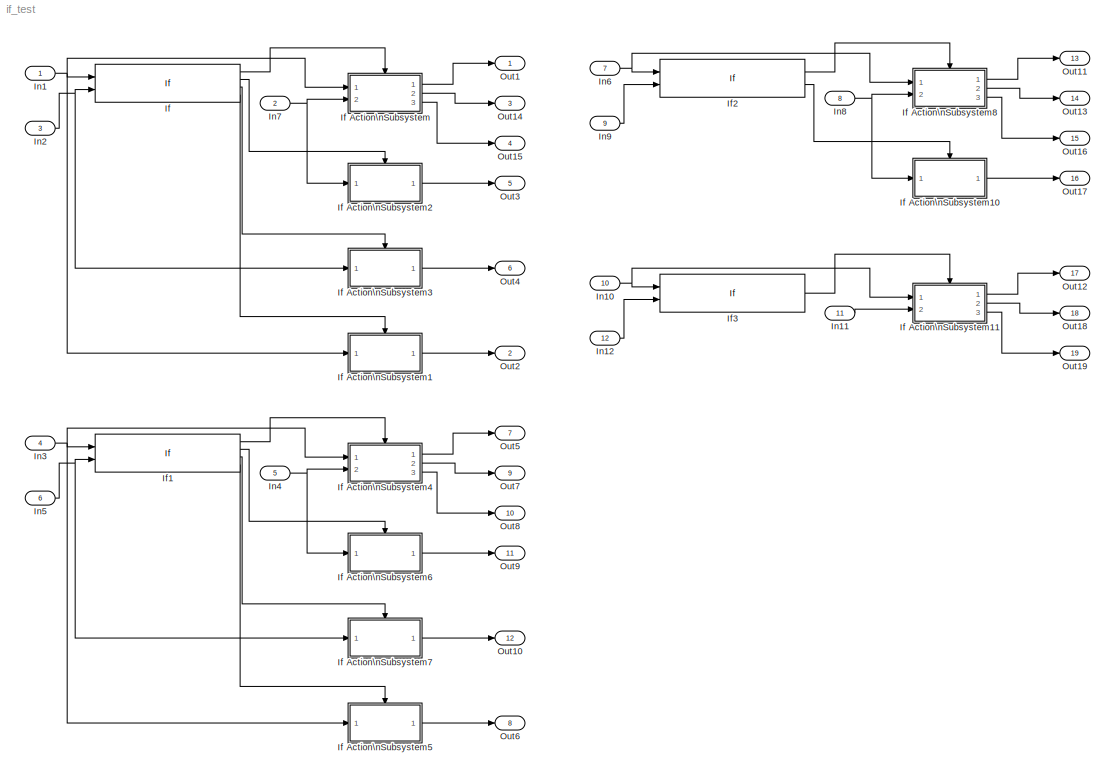
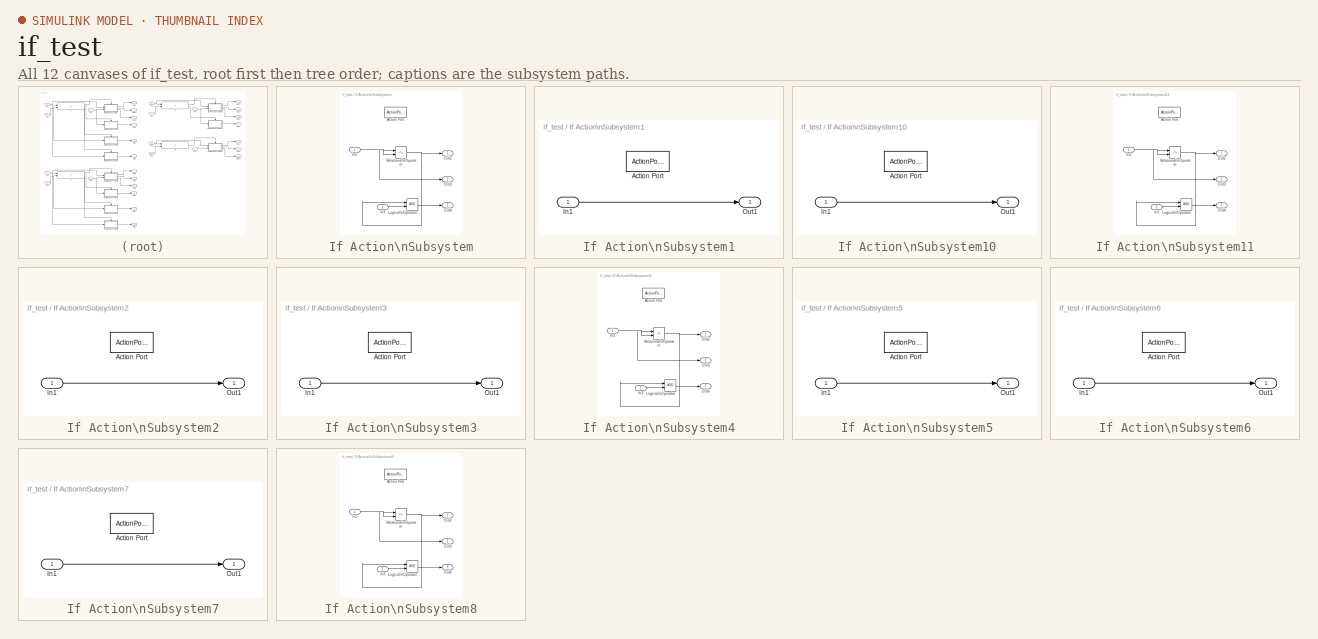
[diagram: thumbnail index - all 12 canvases of the model, root first then tree order]
MODEL if_test
KIND model
BLOCK [If] If
  ElseIfExpressions = u2 < 3, (-u2 > u1) & u2 > 0
  IfExpression = u2 ~= 0
  NumInputs = 2
  Ports = [2, 4]
  SID = 156
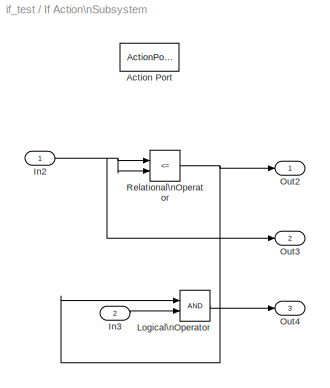
BLOCK [SubSystem] If Action\nSubsystem
  Ports = [2, 3, 0, 0, 0, 0, 0, 1]
  RequestExecContextInheritance = off
  SID = 152
  TreatAsAtomicUnit = on
  Variant = off
BLOCK [ActionPort] If Action\nSubsystem/Action Port
  ActionType = then
  SID = 154
BLOCK [Inport] If Action\nSubsystem/In2
  IconDisplay = Port number
  SID = 157
BLOCK [Inport] If Action\nSubsystem/In3
  IconDisplay = Port number
  Port = 2
  SID = 158
BLOCK [Logic] If Action\nSubsystem/Logical\nOperator
  AllPortsSameDT = off
  OutDataTypeStr = boolean
  Ports = [2, 1]
  SID = 159
BLOCK [Outport] If Action\nSubsystem/Out2
  IconDisplay = Port number
  SID = 161
BLOCK [Outport] If Action\nSubsystem/Out3
  IconDisplay = Port number
  Port = 2
  SID = 162
BLOCK [Outport] If Action\nSubsystem/Out4
  IconDisplay = Port number
  Port = 3
  SID = 163
BLOCK [RelationalOperator] If Action\nSubsystem/Relational\nOperator
  InputSameDT = off
  Operator = <=
  OutDataTypeStr = boolean
  Ports = [2, 1]
  SID = 160
BLOCK [SubSystem] If Action\nSubsystem1
  Ports = [1, 1, 0, 0, 0, 0, 0, 1]
  RequestExecContextInheritance = off
  SID = 164
  TreatAsAtomicUnit = on
  Variant = off
BLOCK [ActionPort] If Action\nSubsystem1/Action Port
  ActionType = else
  SID = 166
BLOCK [Inport] If Action\nSubsystem1/In1
  IconDisplay = Port number
  SID = 165
BLOCK [Outport] If Action\nSubsystem1/Out1
  IconDisplay = Port number
  SID = 167
BLOCK [SubSystem] If Action\nSubsystem10
  Ports = [1, 1, 0, 0, 0, 0, 0, 1]
  RequestExecContextInheritance = off
  SID = 227
  TreatAsAtomicUnit = on
  Variant = off
BLOCK [ActionPort] If Action\nSubsystem10/Action Port
  ActionType = elseif
  SID = 229
BLOCK [Inport] If Action\nSubsystem10/In1
  IconDisplay = Port number
  SID = 228
BLOCK [Outport] If Action\nSubsystem10/Out1
  IconDisplay = Port number
  SID = 230
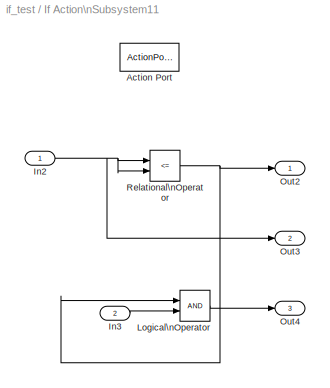
BLOCK [SubSystem] If Action\nSubsystem11
  Ports = [2, 3, 0, 0, 0, 0, 0, 1]
  RequestExecContextInheritance = off
  SID = 248
  TreatAsAtomicUnit = on
  Variant = off
BLOCK [ActionPort] If Action\nSubsystem11/Action Port
  ActionType = then
  SID = 251
BLOCK [Inport] If Action\nSubsystem11/In2
  IconDisplay = Port number
  SID = 249
BLOCK [Inport] If Action\nSubsystem11/In3
  IconDisplay = Port number
  Port = 2
  SID = 250
BLOCK [Logic] If Action\nSubsystem11/Logical\nOperator
  AllPortsSameDT = off
  OutDataTypeStr = boolean
  Ports = [2, 1]
  SID = 252
BLOCK [Outport] If Action\nSubsystem11/Out2
  IconDisplay = Port number
  SID = 254
BLOCK [Outport] If Action\nSubsystem11/Out3
  IconDisplay = Port number
  Port = 2
  SID = 255
BLOCK [Outport] If Action\nSubsystem11/Out4
  IconDisplay = Port number
  Port = 3
  SID = 256
BLOCK [RelationalOperator] If Action\nSubsystem11/Relational\nOperator
  InputSameDT = off
  Operator = <=
  OutDataTypeStr = boolean
  Ports = [2, 1]
  SID = 253
BLOCK [SubSystem] If Action\nSubsystem2
  Ports = [1, 1, 0, 0, 0, 0, 0, 1]
  RequestExecContextInheritance = off
  SID = 168
  TreatAsAtomicUnit = on
  Variant = off
BLOCK [ActionPort] If Action\nSubsystem2/Action Port
  ActionType = elseif
  SID = 170
BLOCK [Inport] If Action\nSubsystem2/In1
  IconDisplay = Port number
  SID = 169
BLOCK [Outport] If Action\nSubsystem2/Out1
  IconDisplay = Port number
  SID = 171
BLOCK [SubSystem] If Action\nSubsystem3
  Ports = [1, 1, 0, 0, 0, 0, 0, 1]
  RequestExecContextInheritance = off
  SID = 173
  TreatAsAtomicUnit = on
  Variant = off
BLOCK [ActionPort] If Action\nSubsystem3/Action Port
  ActionType = elseif
  SID = 175
BLOCK [Inport] If Action\nSubsystem3/In1
  IconDisplay = Port number
  SID = 174
BLOCK [Outport] If Action\nSubsystem3/Out1
  IconDisplay = Port number
  SID = 176
BLOCK [SubSystem] If Action\nSubsystem4
  Ports = [2, 3, 0, 0, 0, 0, 0, 1]
  RequestExecContextInheritance = off
  SID = 183
  TreatAsAtomicUnit = on
  Variant = off
BLOCK [ActionPort] If Action\nSubsystem4/Action Port
  ActionType = then
  SID = 186
BLOCK [Inport] If Action\nSubsystem4/In2
  IconDisplay = Port number
  SID = 184
BLOCK [Inport] If Action\nSubsystem4/In3
  IconDisplay = Port number
  Port = 2
  SID = 185
BLOCK [Logic] If Action\nSubsystem4/Logical\nOperator
  AllPortsSameDT = off
  OutDataTypeStr = boolean
  Ports = [2, 1]
  SID = 187
BLOCK [Outport] If Action\nSubsystem4/Out2
  IconDisplay = Port number
  SID = 189
BLOCK [Outport] If Action\nSubsystem4/Out3
  IconDisplay = Port number
  Port = 2
  SID = 190
BLOCK [Outport] If Action\nSubsystem4/Out4
  IconDisplay = Port number
  Port = 3
  SID = 191
BLOCK [RelationalOperator] If Action\nSubsystem4/Relational\nOperator
  InputSameDT = off
  Operator = <=
  OutDataTypeStr = boolean
  Ports = [2, 1]
  SID = 188
BLOCK [SubSystem] If Action\nSubsystem5
  Ports = [1, 1, 0, 0, 0, 0, 0, 1]
  RequestExecContextInheritance = off
  SID = 192
  TreatAsAtomicUnit = on
  Variant = off
BLOCK [ActionPort] If Action\nSubsystem5/Action Port
  ActionType = else
  SID = 194
BLOCK [Inport] If Action\nSubsystem5/In1
  IconDisplay = Port number
  SID = 193
BLOCK [Outport] If Action\nSubsystem5/Out1
  IconDisplay = Port number
  SID = 195
BLOCK [SubSystem] If Action\nSubsystem6
  Ports = [1, 1, 0, 0, 0, 0, 0, 1]
  RequestExecContextInheritance = off
  SID = 196
  TreatAsAtomicUnit = on
  Variant = off
BLOCK [ActionPort] If Action\nSubsystem6/Action Port
  ActionType = elseif
  SID = 198
BLOCK [Inport] If Action\nSubsystem6/In1
  IconDisplay = Port number
  SID = 197
BLOCK [Outport] If Action\nSubsystem6/Out1
  IconDisplay = Port number
  SID = 199
BLOCK [SubSystem] If Action\nSubsystem7
  Ports = [1, 1, 0, 0, 0, 0, 0, 1]
  RequestExecContextInheritance = off
  SID = 200
  TreatAsAtomicUnit = on
  Variant = off
BLOCK [ActionPort] If Action\nSubsystem7/Action Port
  ActionType = elseif
  SID = 202
BLOCK [Inport] If Action\nSubsystem7/In1
  IconDisplay = Port number
  SID = 201
BLOCK [Outport] If Action\nSubsystem7/Out1
  IconDisplay = Port number
  SID = 203
BLOCK [SubSystem] If Action\nSubsystem8
  Ports = [2, 3, 0, 0, 0, 0, 0, 1]
  RequestExecContextInheritance = off
  SID = 214
  TreatAsAtomicUnit = on
  Variant = off
BLOCK [ActionPort] If Action\nSubsystem8/Action Port
  ActionType = then
  SID = 217
BLOCK [Inport] If Action\nSubsystem8/In2
  IconDisplay = Port number
  SID = 215
BLOCK [Inport] If Action\nSubsystem8/In3
  IconDisplay = Port number
  Port = 2
  SID = 216
BLOCK [Logic] If Action\nSubsystem8/Logical\nOperator
  AllPortsSameDT = off
  OutDataTypeStr = boolean
  Ports = [2, 1]
  SID = 218
BLOCK [Outport] If Action\nSubsystem8/Out2
  IconDisplay = Port number
  SID = 220
BLOCK [Outport] If Action\nSubsystem8/Out3
  IconDisplay = Port number
  Port = 2
  SID = 221
BLOCK [Outport] If Action\nSubsystem8/Out4
  IconDisplay = Port number
  Port = 3
  SID = 222
BLOCK [RelationalOperator] If Action\nSubsystem8/Relational\nOperator
  InputSameDT = off
  Operator = <=
  OutDataTypeStr = boolean
  Ports = [2, 1]
  SID = 219
BLOCK [If] If1
  ElseIfExpressions = u2(2) < 3, (-u2(1) > u1(3)) & u2(2) > 0
  IfExpression = u1(2) == 0
  NumInputs = 2
  Ports = [2, 4]
  SID = 182
BLOCK [If] If2
  ElseIfExpressions = (-u2 > u1) | u2 > 0
  IfExpression = u2 ~= 0
  NumInputs = 2
  Ports = [2, 2]
  SID = 213
  ShowElse = off
BLOCK [If] If3
  IfExpression = u2 ~= 0
  NumInputs = 2
  Ports = [2, 1]
  SID = 257
  ShowElse = off
BLOCK [Inport] In1
  IconDisplay = Port number
  SID = 30
BLOCK [Inport] In10
  IconDisplay = Port number
  Port = 10
  SID = 241
BLOCK [Inport] In11
  IconDisplay = Port number
  OutDataTypeStr = boolean
  Port = 11
  SID = 242
BLOCK [Inport] In12
  IconDisplay = Port number
  Port = 12
  SID = 243
BLOCK [Inport] In2
  IconDisplay = Port number
  Port = 3
  SID = 178
BLOCK [Inport] In3
  IconDisplay = Port number
  Port = 4
  PortDimensions = 3
  SID = 179
BLOCK [Inport] In4
  IconDisplay = Port number
  OutDataTypeStr = boolean
  Port = 5
  SID = 180
BLOCK [Inport] In5
  IconDisplay = Port number
  Port = 6
  PortDimensions = 4
  SID = 181
BLOCK [Inport] In6
  IconDisplay = Port number
  Port = 7
  SID = 210
BLOCK [Inport] In7
  IconDisplay = Port number
  OutDataTypeStr = boolean
  Port = 2
  SID = 149
BLOCK [Inport] In8
  IconDisplay = Port number
  OutDataTypeStr = boolean
  Port = 8
  SID = 211
BLOCK [Inport] In9
  IconDisplay = Port number
  Port = 9
  SID = 212
BLOCK [Outport] Out1
  IconDisplay = Port number
  SID = 32
BLOCK [Outport] Out10
  IconDisplay = Port number
  Port = 12
  SID = 209
BLOCK [Outport] Out11
  IconDisplay = Port number
  Port = 13
  SID = 235
BLOCK [Outport] Out12
  IconDisplay = Port number
  Port = 17
  SID = 258
BLOCK [Outport] Out13
  IconDisplay = Port number
  Port = 14
  SID = 237
BLOCK [Outport] Out14
  IconDisplay = Port number
  Port = 3
  SID = 144
BLOCK [Outport] Out15
  IconDisplay = Port number
  Port = 4
  SID = 150
BLOCK [Outport] Out16
  IconDisplay = Port number
  Port = 15
  SID = 238
BLOCK [Outport] Out17
  IconDisplay = Port number
  Port = 16
  SID = 239
BLOCK [Outport] Out18
  IconDisplay = Port number
  Port = 18
  SID = 259
BLOCK [Outport] Out19
  IconDisplay = Port number
  Port = 19
  SID = 260
BLOCK [Outport] Out2
  IconDisplay = Port number
  Port = 2
  SID = 59
BLOCK [Outport] Out3
  IconDisplay = Port number
  Port = 5
  SID = 172
BLOCK [Outport] Out4
  IconDisplay = Port number
  Port = 6
  SID = 177
BLOCK [Outport] Out5
  IconDisplay = Port number
  Port = 7
  SID = 204
BLOCK [Outport] Out6
  IconDisplay = Port number
  Port = 8
  SID = 205
BLOCK [Outport] Out7
  IconDisplay = Port number
  Port = 9
  SID = 206
BLOCK [Outport] Out8
  IconDisplay = Port number
  Port = 10
  SID = 207
BLOCK [Outport] Out9
  IconDisplay = Port number
  Port = 11
  SID = 208
NET If Action\nSubsystem/In2:1 -> If Action\nSubsystem/Out3:1, If Action\nSubsystem/Relational\nOperator:1, If Action\nSubsystem/Relational\nOperator:2
LINE If Action\nSubsystem/In3:1 -> If Action\nSubsystem/Logical\nOperator:2
LINE If Action\nSubsystem/Logical\nOperator:1 -> If Action\nSubsystem/Out4:1
NET If Action\nSubsystem/Relational\nOperator:1 -> If Action\nSubsystem/Logical\nOperator:1, If Action\nSubsystem/Out2:1
LINE If Action\nSubsystem1/In1:1 -> If Action\nSubsystem1/Out1:1
LINE If Action\nSubsystem10/In1:1 -> If Action\nSubsystem10/Out1:1
LINE If Action\nSubsystem10:1 -> Out17:1
NET If Action\nSubsystem11/In2:1 -> If Action\nSubsystem11/Out3:1, If Action\nSubsystem11/Relational\nOperator:1, If Action\nSubsystem11/Relational\nOperator:2
LINE If Action\nSubsystem11/In3:1 -> If Action\nSubsystem11/Logical\nOperator:2
LINE If Action\nSubsystem11/Logical\nOperator:1 -> If Action\nSubsystem11/Out4:1
NET If Action\nSubsystem11/Relational\nOperator:1 -> If Action\nSubsystem11/Logical\nOperator:1, If Action\nSubsystem11/Out2:1
LINE If Action\nSubsystem11:1 -> Out12:1
LINE If Action\nSubsystem11:2 -> Out18:1
LINE If Action\nSubsystem11:3 -> Out19:1
LINE If Action\nSubsystem1:1 -> Out2:1
LINE If Action\nSubsystem2/In1:1 -> If Action\nSubsystem2/Out1:1
LINE If Action\nSubsystem2:1 -> Out3:1
LINE If Action\nSubsystem3/In1:1 -> If Action\nSubsystem3/Out1:1
LINE If Action\nSubsystem3:1 -> Out4:1
NET If Action\nSubsystem4/In2:1 -> If Action\nSubsystem4/Out3:1, If Action\nSubsystem4/Relational\nOperator:1, If Action\nSubsystem4/Relational\nOperator:2
LINE If Action\nSubsystem4/In3:1 -> If Action\nSubsystem4/Logical\nOperator:2
LINE If Action\nSubsystem4/Logical\nOperator:1 -> If Action\nSubsystem4/Out4:1
NET If Action\nSubsystem4/Relational\nOperator:1 -> If Action\nSubsystem4/Logical\nOperator:1, If Action\nSubsystem4/Out2:1
LINE If Action\nSubsystem4:1 -> Out5:1
LINE If Action\nSubsystem4:2 -> Out7:1
LINE If Action\nSubsystem4:3 -> Out8:1
LINE If Action\nSubsystem5/In1:1 -> If Action\nSubsystem5/Out1:1
LINE If Action\nSubsystem5:1 -> Out6:1
LINE If Action\nSubsystem6/In1:1 -> If Action\nSubsystem6/Out1:1
LINE If Action\nSubsystem6:1 -> Out9:1
LINE If Action\nSubsystem7/In1:1 -> If Action\nSubsystem7/Out1:1
LINE If Action\nSubsystem7:1 -> Out10:1
NET If Action\nSubsystem8/In2:1 -> If Action\nSubsystem8/Out3:1, If Action\nSubsystem8/Relational\nOperator:1, If Action\nSubsystem8/Relational\nOperator:2
LINE If Action\nSubsystem8/In3:1 -> If Action\nSubsystem8/Logical\nOperator:2
LINE If Action\nSubsystem8/Logical\nOperator:1 -> If Action\nSubsystem8/Out4:1
NET If Action\nSubsystem8/Relational\nOperator:1 -> If Action\nSubsystem8/Logical\nOperator:1, If Action\nSubsystem8/Out2:1
LINE If Action\nSubsystem8:1 -> Out11:1
LINE If Action\nSubsystem8:2 -> Out13:1
LINE If Action\nSubsystem8:3 -> Out16:1
LINE If Action\nSubsystem:1 -> Out1:1
LINE If Action\nSubsystem:2 -> Out14:1
LINE If Action\nSubsystem:3 -> Out15:1
LINE If1:1 -> If Action\nSubsystem4:ifaction
LINE If1:2 -> If Action\nSubsystem6:ifaction
LINE If1:3 -> If Action\nSubsystem7:ifaction
LINE If1:4 -> If Action\nSubsystem5:ifaction
LINE If2:1 -> If Action\nSubsystem8:ifaction
LINE If2:2 -> If Action\nSubsystem10:ifaction
LINE If3:1 -> If Action\nSubsystem11:ifaction
LINE If:1 -> If Action\nSubsystem:ifaction
LINE If:2 -> If Action\nSubsystem2:ifaction
LINE If:3 -> If Action\nSubsystem3:ifaction
LINE If:4 -> If Action\nSubsystem1:ifaction
NET In10:1 -> If Action\nSubsystem11:1, If3:1
LINE In11:1 -> If Action\nSubsystem11:2
LINE In12:1 -> If3:2
NET In1:1 -> If Action\nSubsystem1:1, If Action\nSubsystem:1, If:1
NET In2:1 -> If Action\nSubsystem3:1, If:2
NET In3:1 -> If Action\nSubsystem4:1, If Action\nSubsystem5:1, If1:1
NET In4:1 -> If Action\nSubsystem4:2, If Action\nSubsystem6:1
NET In5:1 -> If Action\nSubsystem7:1, If1:2
NET In6:1 -> If Action\nSubsystem8:1, If2:1
NET In7:1 -> If Action\nSubsystem2:1, If Action\nSubsystem:2
NET In8:1 -> If Action\nSubsystem10:1, If Action\nSubsystem8:2
LINE In9:1 -> If2:2
note: NET lines group one-source signal fan-out (src -> all destinations, sorted); 1:1 wires keep LINE
